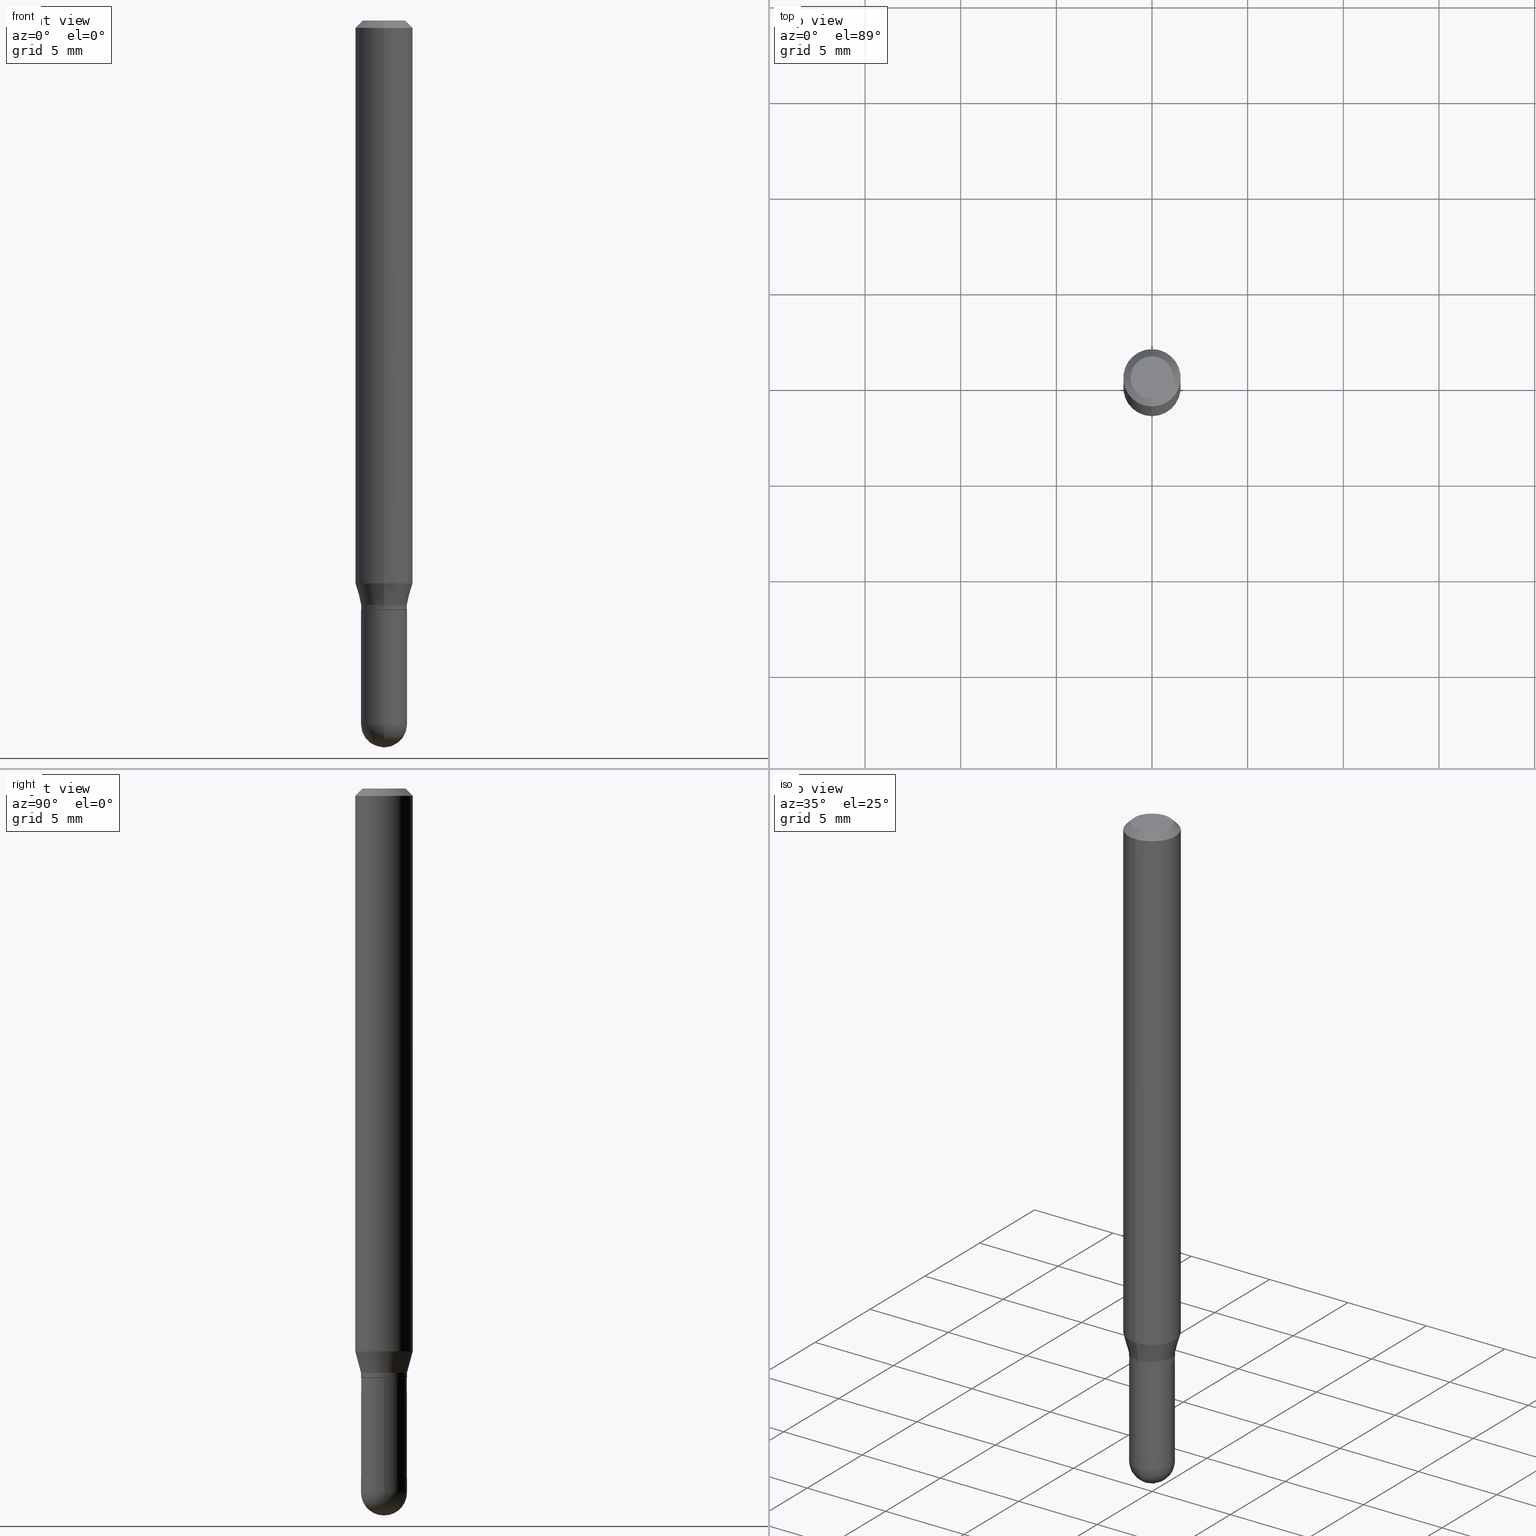
[diagram: canonical four-view strip — front | top / right | iso, engineering-drawing reading convention]
A machine part, canonical four-view strip (front | top / right | iso — engineering-drawing reading convention). The complete STEP part file that produces these views, byte-faithful:
ISO-10303-21;
HEADER;
FILE_DESCRIPTION (( 'STEP AP203' ),
    '1' );
FILE_NAME ('01993.STEP',
    '2024-03-07T19:52:55',
    ( '' ),
    ( '' ),
    'SwSTEP 2.0',
    'SolidWorks 2023',
    '' );
FILE_SCHEMA (( 'CONFIG_CONTROL_DESIGN' ));
ENDSEC;

DATA;
#1 = DIRECTION ( 'NONE',  ( -2.445468806185136597E-29, 3.491481338843145583E-15, 1.000000000000000000 ) ) ;
#2 = PLANE ( 'NONE',  #130 ) ;
#3 = CC_DESIGN_PERSON_AND_ORGANIZATION_ASSIGNMENT ( #34, #420, ( #196 ) ) ;
#4 = EDGE_LOOP ( 'NONE', ( #108, #353 ) ) ;
#5 = ORIENTED_EDGE ( 'NONE', *, *, #501, .F. ) ;
#6 = LINE ( 'NONE', #241, #417 ) ;
#7 = CIRCLE ( 'NONE', #445, 0.04404999999999999888 ) ;
#8 = ORIENTED_EDGE ( 'NONE', *, *, #473, .T. ) ;
#9 = DATE_AND_TIME ( #334, #469 ) ;
#10 = LINE ( 'NONE', #432, #486 ) ;
#11 = DIRECTION ( 'NONE',  ( 1.839019923739601499E-15, 0.2588190451025251249, 0.9659258262890670910 ) ) ;
#12 = ADVANCED_FACE ( 'NONE', ( #201 ), #2, .F. ) ;
#13 = CARTESIAN_POINT ( 'NONE',  ( -3.264535051818032208E-16, -0.04675000000000423261, -1.212599999999999900 ) ) ;
#14 = CARTESIAN_POINT ( 'NONE',  ( 3.357314426466819515E-16, 0.04724999999999483086, -1.448850000000000415 ) ) ;
#15 = CARTESIAN_POINT ( 'NONE',  ( 4.123439461173743285E-16, 0.05904999999999994975, -0.01500000000000023016 ) ) ;
#16 = DIRECTION ( 'NONE',  ( -2.445408174341908367E-29, 3.491568167093598573E-15, 1.000000000000000000 ) ) ;
#17 = AXIS2_PLACEMENT_3D ( 'NONE', #322, #480, #55 ) ;
#18 = FACE_OUTER_BOUND ( 'NONE', #4, .T. ) ;
#19 = SPHERICAL_SURFACE ( 'NONE', #243, 0.04724999999999979911 ) ;
#20 = EDGE_CURVE ( 'NONE', #63, #118, #312, .T. ) ;
#21 = CARTESIAN_POINT ( 'NONE',  ( -3.299449865206399170E-16, -0.04725000000000495470, -1.448849999999999749 ) ) ;
#22 = DATE_AND_TIME ( #189, #395 ) ;
#23 = DIRECTION ( 'NONE',  ( 1.000000000000000000, -6.982962677686256455E-15, 0.000000000000000000 ) ) ;
#24 = ORIENTED_EDGE ( 'NONE', *, *, #510, .T. ) ;
#25 = PRODUCT_DEFINITION_SHAPE ( 'NONE', 'NONE',  #159 ) ;
#26 = DIRECTION ( 'NONE',  ( -6.982962677686266711E-15, -1.000000000000000000, 2.921762560068730989E-15 ) ) ;
#27 = ORIENTED_EDGE ( 'NONE', *, *, #277, .F. ) ;
#28 = AXIS2_PLACEMENT_3D ( 'NONE', #51, #441, #374 ) ;
#29 = COORDINATED_UNIVERSAL_TIME_OFFSET ( 5, 0, .BEHIND. ) ;
#30 = APPROVAL_PERSON_ORGANIZATION ( #354, #68, #255 ) ;
#31 = DIRECTION ( 'NONE',  ( -2.445468806185136597E-29, 3.491481338843145583E-15, 1.000000000000000000 ) ) ;
#32 = APPROVAL_ROLE ( '' ) ;
#33 = DIRECTION ( 'NONE',  ( 1.000000000000000000, -6.982962677686267499E-15, 0.000000000000000000 ) ) ;
#34 = PERSON_AND_ORGANIZATION ( #282, #61 ) ;
#35 = EDGE_LOOP ( 'NONE', ( #119, #27, #43, #161 ) ) ;
#36 = ORIENTED_EDGE ( 'NONE', *, *, #310, .F. ) ;
#37 = ADVANCED_FACE ( 'NONE', ( #18 ), #447, .F. ) ;
#38 = APPROVAL_STATUS ( 'not_yet_approved' ) ;
#39 = DIRECTION ( 'NONE',  ( 2.438088387897960049E-29, -3.491481338843145188E-15, -1.000000000000000000 ) ) ;
#40 = EDGE_CURVE ( 'NONE', #165, #397, #299, .T. ) ;
#41 = AXIS2_PLACEMENT_3D ( 'NONE', #331, #443, #101 ) ;
#42 = CC_DESIGN_APPROVAL ( #68, ( #196 ) ) ;
#43 = ORIENTED_EDGE ( 'NONE', *, *, #57, .T. ) ;
#44 = EDGE_LOOP ( 'NONE', ( #442, #127, #373, #148 ) ) ;
#45 = VERTEX_POINT ( 'NONE', #66 ) ;
#46 = DIRECTION ( 'NONE',  ( -2.445468806185136877E-29, 3.491481338843145188E-15, 1.000000000000000000 ) ) ;
#47 = VECTOR ( 'NONE', #461, 39.37007874015748143 ) ;
#48 = PRODUCT_RELATED_PRODUCT_CATEGORY ( 'detail', '', ( #342 ) ) ;
#49 = FACE_OUTER_BOUND ( 'NONE', #409, .T. ) ;
#50 = EDGE_LOOP ( 'NONE', ( #246, #398, #65, #479 ) ) ;
#51 = CARTESIAN_POINT ( 'NONE',  ( 3.539076819124962473E-29, -5.064419193908863088E-15, -1.448849999999999971 ) ) ;
#52 = EDGE_CURVE ( 'NONE', #118, #301, #177, .T. ) ;
#53 = CARTESIAN_POINT ( 'NONE',  ( 2.965301952206998270E-29, -4.233875559417696891E-15, -1.212599999999999900 ) ) ;
#54 = COORDINATED_UNIVERSAL_TIME_OFFSET ( 5, 0, .BEHIND. ) ;
#55 = DIRECTION ( 'NONE',  ( -6.982962677686265922E-15, -1.000000000000000000, 3.505890868245046092E-15 ) ) ;
#56 = DIRECTION ( 'NONE',  ( -2.445468806185136597E-29, 3.491481338843145583E-15, 1.000000000000000000 ) ) ;
#57 = EDGE_CURVE ( 'NONE', #422, #388, #175, .T. ) ;
#58 = FACE_OUTER_BOUND ( 'NONE', #325, .T. ) ;
#59 = CARTESIAN_POINT ( 'NONE',  ( -3.299449865206764511E-16, -0.04725000000000005584, 1.649765958951727483E-16 ) ) ;
#60 = AXIS2_PLACEMENT_3D ( 'NONE', #134, #56, #494 ) ;
#61 = ORGANIZATION ( 'UNSPECIFIED', 'UNSPECIFIED', '' ) ;
#62 = CARTESIAN_POINT ( 'NONE',  ( -4.051124067684085231E-16, -0.05905000000000005383, -0.01499999999999981730 ) ) ;
#63 = VERTEX_POINT ( 'NONE', #403 ) ;
#64 = CARTESIAN_POINT ( 'NONE',  ( 2.965301952206998270E-29, -4.233875559417696891E-15, -1.212599999999999900 ) ) ;
#65 = ORIENTED_EDGE ( 'NONE', *, *, #274, .T. ) ;
#66 = CARTESIAN_POINT ( 'NONE',  ( 3.357314426466771690E-16, 0.04724999999999579536, -1.212099999999999955 ) ) ;
#67 = CARTESIAN_POINT ( 'NONE',  ( 3.668112261512868349E-31, -5.237352250640406068E-17, -0.01500000000000002373 ) ) ;
#68 = APPROVAL ( #504, 'UNSPECIFIED' ) ;
#69 = CIRCLE ( 'NONE', #458, 0.04724999999999998646 ) ;
#70 = CARTESIAN_POINT ( 'NONE',  ( 3.543117479841335070E-29, -5.058632737782891656E-15, -1.448849999999999971 ) ) ;
#71 = UNCERTAINTY_MEASURE_WITH_UNIT (LENGTH_MEASURE( 1.000000000000000082E-05 ), #179, 'distance_accuracy_value', 'NONE');
#72 = EDGE_CURVE ( 'NONE', #301, #45, #210, .T. ) ;
#73 = CARTESIAN_POINT ( 'NONE',  ( 0.000000000000000000, 0.000000000000000000, 0.000000000000000000 ) ) ;
#74 = ORIENTED_EDGE ( 'NONE', *, *, #205, .T. ) ;
#75 = CIRCLE ( 'NONE', #41, 0.05904999999999999832 ) ;
#76 = FACE_OUTER_BOUND ( 'NONE', #284, .T. ) ;
#77 = DIRECTION ( 'NONE',  ( 2.445408174341908367E-29, -3.491568167093598573E-15, -1.000000000000000000 ) ) ;
#78 = CARTESIAN_POINT ( 'NONE',  ( -3.299449865206470168E-16, -0.04725000000000425388, -1.202599999999999669 ) ) ;
#79 = ORIENTED_EDGE ( 'NONE', *, *, #20, .F. ) ;
#80 = DIRECTION ( 'NONE',  ( 0.000000000000000000, 0.000000000000000000, 1.000000000000000000 ) ) ;
#81 = AXIS2_PLACEMENT_3D ( 'NONE', #94, #328, #337 ) ;
#82 = CIRCLE ( 'NONE', #507, 0.04724999999999998646 ) ;
#83 = ORIENTED_EDGE ( 'NONE', *, *, #20, .T. ) ;
#84 = PERSON_AND_ORGANIZATION ( #282, #61 ) ;
#85 = DIRECTION ( 'NONE',  ( -6.982962677686265922E-15, -1.000000000000000000, 3.491568167093598178E-15 ) ) ;
#86 = ORIENTED_EDGE ( 'NONE', *, *, #57, .F. ) ;
#87 = EDGE_CURVE ( 'NONE', #474, #104, #456, .T. ) ;
#88 = DIRECTION ( 'NONE',  ( -6.982962677686265922E-15, -1.000000000000000000, 5.781688875479946610E-15 ) ) ;
#89 = EDGE_LOOP ( 'NONE', ( #212, #453, #225, #86 ) ) ;
#90 = CIRCLE ( 'NONE', #505, 0.04724999999999999339 ) ;
#91 = DIRECTION ( 'NONE',  ( -6.982962677686265922E-15, -1.000000000000000000, 2.890844437739957528E-15 ) ) ;
#92 = DIRECTION ( 'NONE',  ( -6.982962677686265922E-15, -1.000000000000000000, 2.890844437739957528E-15 ) ) ;
#93 = APPROVAL ( #263, 'UNSPECIFIED' ) ;
#94 = CARTESIAN_POINT ( 'NONE',  ( 3.539076819124962473E-29, -5.064419193908863088E-15, -1.448849999999999971 ) ) ;
#95 = FACE_OUTER_BOUND ( 'NONE', #207, .T. ) ;
#96 = LINE ( 'NONE', #59, #278 ) ;
#97 = DIRECTION ( 'NONE',  ( 4.937700262164548042E-15, 0.7071067811865451302, -0.7071067811865499042 ) ) ;
#98 = DIRECTION ( 'NONE',  ( -2.445408174341908367E-29, 3.491568167093598573E-15, 1.000000000000000000 ) ) ;
#99 = EDGE_LOOP ( 'NONE', ( #500, #163, #427, #370 ) ) ;
#100 = CIRCLE ( 'NONE', #60, 0.04724999999999998646 ) ;
#101 = DIRECTION ( 'NONE',  ( -6.982962677686265922E-15, -1.000000000000000000, 4.626330217890369336E-15 ) ) ;
#102 = CONICAL_SURFACE ( 'NONE', #164, 0.04674999999999999295, 0.7853981633974739252 ) ;
#103 = PERSON_AND_ORGANIZATION_ROLE ( 'design_supplier' ) ;
#104 = VERTEX_POINT ( 'NONE', #21 ) ;
#105 = CARTESIAN_POINT ( 'NONE',  ( 0.04724999999999998646, -3.299449865206760074E-16, 2.303993526563579130E-30 ) ) ;
#106 = PERSON_AND_ORGANIZATION ( #282, #61 ) ;
#107 = CC_DESIGN_DATE_AND_TIME_ASSIGNMENT ( #448, #222, ( #159 ) ) ;
#108 = ORIENTED_EDGE ( 'NONE', *, *, #277, .T. ) ;
#109 = VECTOR ( 'NONE', #11, 39.37007874015748854 ) ;
#110 = CIRCLE ( 'NONE', #186, 0.04674999999999999295 ) ;
#111 = ADVANCED_FACE ( 'NONE', ( #183 ), #153, .T. ) ;
#112 = VERTEX_POINT ( 'NONE', #497 ) ;
#113 = APPLICATION_PROTOCOL_DEFINITION ( 'international standard', 'config_control_design', 1994, #167 ) ;
#114 = DIRECTION ( 'NONE',  ( -2.445408174341908367E-29, 3.491568167093598573E-15, 1.000000000000000000 ) ) ;
#115 = EDGE_CURVE ( 'NONE', #477, #248, #279, .T. ) ;
#116 = FACE_OUTER_BOUND ( 'NONE', #89, .T. ) ;
#117 = ADVANCED_FACE ( 'NONE', ( #306 ), #262, .T. ) ;
#118 = VERTEX_POINT ( 'NONE', #13 ) ;
#119 = ORIENTED_EDGE ( 'NONE', *, *, #411, .F. ) ;
#120 = AXIS2_PLACEMENT_3D ( 'NONE', #402, #98, #288 ) ;
#121 = LOCAL_TIME ( 14, 52, 55.00000000000000000, #271 ) ;
#122 = CARTESIAN_POINT ( 'NONE',  ( 0.000000000000000000, 0.000000000000000000, 0.000000000000000000 ) ) ;
#123 = CC_DESIGN_PERSON_AND_ORGANIZATION_ASSIGNMENT ( #253, #378, ( #159 ) ) ;
#124 = ORIENTED_EDGE ( 'NONE', *, *, #510, .F. ) ;
#125 = DIRECTION ( 'NONE',  ( -6.982962677686265922E-15, -1.000000000000000000, 3.491568167093598178E-15 ) ) ;
#126 = MANIFOLD_SOLID_BREP ( 'Body-Move/Copy2[2]', #466 ) ;
#127 = ORIENTED_EDGE ( 'NONE', *, *, #115, .T. ) ;
#128 = CARTESIAN_POINT ( 'NONE',  ( 2.940847870463578782E-29, -4.198959877746760740E-15, -1.202599999999999891 ) ) ;
#129 = DIRECTION ( 'NONE',  ( -2.445468806185136597E-29, 3.491481338843145583E-15, 1.000000000000000000 ) ) ;
#130 = AXIS2_PLACEMENT_3D ( 'NONE', #472, #244, #259 ) ;
#131 = EDGE_CURVE ( 'NONE', #245, #104, #187, .T. ) ;
#132 = CONICAL_SURFACE ( 'NONE', #268, 0.05904999999999999832, 0.7853981633974483900 ) ;
#133 = LOCAL_TIME ( 14, 52, 55.00000000000000000, #29 ) ;
#134 = CARTESIAN_POINT ( 'NONE',  ( 3.543117479841335070E-29, -5.058632737782891656E-15, -1.448849999999999971 ) ) ;
#135 = DIRECTION ( 'NONE',  ( 1.000000000000000000, -6.982962677686265922E-15, 4.883557194083112901E-29 ) ) ;
#136 = CARTESIAN_POINT ( 'NONE',  ( 0.000000000000000000, 0.000000000000000000, 0.000000000000000000 ) ) ;
#137 = CARTESIAN_POINT ( 'NONE',  ( 3.075995059520799729E-16, 0.04404999999999999888, -1.657327868089498836E-16 ) ) ;
#138 = CYLINDRICAL_SURFACE ( 'NONE', #467, 0.05904999999999999832 ) ;
#139 = DIRECTION ( 'NONE',  ( -6.982962677686265922E-15, -1.000000000000000000, 2.890844437739957528E-15 ) ) ;
#140 = CARTESIAN_POINT ( 'NONE',  ( 0.04724999999999998646, -4.976146491152720682E-15, -1.448849999999999971 ) ) ;
#141 = SHAPE_DEFINITION_REPRESENTATION ( #25, #482 ) ;
#142 = FACE_OUTER_BOUND ( 'NONE', #35, .T. ) ;
#143 = AXIS2_PLACEMENT_3D ( 'NONE', #327, #492, #139 ) ;
#144 = CLOSED_SHELL ( 'NONE', ( #493, #429, #269, #360, #385 ) ) ;
#145 = DIRECTION ( 'NONE',  ( -2.445408174341908367E-29, 3.491568167093598573E-15, 1.000000000000000000 ) ) ;
#146 = CALENDAR_DATE ( 2024, 7, 3 ) ;
#147 = EDGE_CURVE ( 'NONE', #314, #245, #100, .T. ) ;
#148 = ORIENTED_EDGE ( 'NONE', *, *, #236, .F. ) ;
#149 = DIRECTION ( 'NONE',  ( -2.445408174341908367E-29, 3.491568167093598573E-15, 1.000000000000000000 ) ) ;
#150 = ORIENTED_EDGE ( 'NONE', *, *, #358, .F. ) ;
#151 = CARTESIAN_POINT ( 'NONE',  ( 4.195754854663390985E-16, 0.05904999999999999832, -2.061771002668769780E-16 ) ) ;
#152 = ORIENTED_EDGE ( 'NONE', *, *, #350, .T. ) ;
#153 = CONICAL_SURFACE ( 'NONE', #499, 0.04674999999999999295, 0.7853981633974739252 ) ;
#154 = CIRCLE ( 'NONE', #28, 0.04724999999999979911 ) ;
#155 = DATE_AND_TIME ( #233, #133 ) ;
#156 = ORIENTED_EDGE ( 'NONE', *, *, #512, .T. ) ;
#157 = MECHANICAL_CONTEXT ( 'NONE', #451, 'mechanical' ) ;
#158 = CONICAL_SURFACE ( 'NONE', #143, 0.04725000000000005584, 0.2617993877991504625 ) ;
#159 = PRODUCT_DEFINITION ( 'UNKNOWN', '', #174, #323 ) ;
#160 = ORIENTED_EDGE ( 'NONE', *, *, #40, .F. ) ;
#161 = ORIENTED_EDGE ( 'NONE', *, *, #368, .T. ) ;
#162 = CC_DESIGN_DATE_AND_TIME_ASSIGNMENT ( #22, #260, ( #196 ) ) ;
#163 = ORIENTED_EDGE ( 'NONE', *, *, #454, .T. ) ;
#164 = AXIS2_PLACEMENT_3D ( 'NONE', #302, #171, #481 ) ;
#165 = VERTEX_POINT ( 'NONE', #140 ) ;
#166 = DIRECTION ( 'NONE',  ( -4.851104656540964275E-15, -0.7071067811865500152, -0.7071067811865450192 ) ) ;
#167 = APPLICATION_CONTEXT ( 'configuration controlled 3d designs of mechanical parts and assemblies' ) ;
#168 = FACE_OUTER_BOUND ( 'NONE', #266, .T. ) ;
#169 = DIRECTION ( 'NONE',  ( 6.982962677686265922E-15, 1.000000000000000000, -3.491568167093598573E-15 ) ) ;
#170 = DIRECTION ( 'NONE',  ( -6.982962677686265922E-15, -1.000000000000000000, 2.890844437739957528E-15 ) ) ;
#171 = DIRECTION ( 'NONE',  ( -2.445408174341908367E-29, 3.491568167093598573E-15, 1.000000000000000000 ) ) ;
#172 = CARTESIAN_POINT ( 'NONE',  ( 3.543117479841335070E-29, -5.058632737782891656E-15, -1.448849999999999971 ) ) ;
#173 = VECTOR ( 'NONE', #247, 39.37007874015748854 ) ;
#174 = PRODUCT_DEFINITION_FORMATION_WITH_SPECIFIED_SOURCE ( 'ANY', '', #342, .NOT_KNOWN. ) ;
#175 = LINE ( 'NONE', #15, #333 ) ;
#176 = CARTESIAN_POINT ( 'NONE',  ( 3.539076819124962473E-29, -5.064419193908863088E-15, -1.448849999999999971 ) ) ;
#177 = LINE ( 'NONE', #221, #267 ) ;
#178 = COORDINATED_UNIVERSAL_TIME_OFFSET ( 5, 0, .BEHIND. ) ;
#179 =( CONVERSION_BASED_UNIT ( 'INCH', #188 ) LENGTH_UNIT ( ) NAMED_UNIT ( #450 ) );
#180 = ORIENTED_EDGE ( 'NONE', *, *, #512, .F. ) ;
#181 = DIRECTION ( 'NONE',  ( -2.445408174341908367E-29, 3.491568167093598573E-15, 1.000000000000000000 ) ) ;
#182 = CC_DESIGN_PERSON_AND_ORGANIZATION_ASSIGNMENT ( #265, #415, ( #174 ) ) ;
#183 = FACE_OUTER_BOUND ( 'NONE', #508, .T. ) ;
#184 = ORIENTED_EDGE ( 'NONE', *, *, #190, .F. ) ;
#185 = AXIS2_PLACEMENT_3D ( 'NONE', #213, #16, #170 ) ;
#186 = AXIS2_PLACEMENT_3D ( 'NONE', #64, #149, #227 ) ;
#187 = CIRCLE ( 'NONE', #317, 0.04724999999999998646 ) ;
#188 = LENGTH_MEASURE_WITH_UNIT ( LENGTH_MEASURE( 0.02539999999999999897 ), #352 );
#189 = CALENDAR_DATE ( 2024, 7, 3 ) ;
#190 = EDGE_CURVE ( 'NONE', #63, #45, #303, .T. ) ;
#191 = CARTESIAN_POINT ( 'NONE',  ( 3.357314426466476853E-16, 0.04725000000000005584, -1.649765958951727483E-16 ) ) ;
#192 = VERTEX_POINT ( 'NONE', #339 ) ;
#193 = COORDINATED_UNIVERSAL_TIME_OFFSET ( 5, 0, .BEHIND. ) ;
#194 = ORIENTED_EDGE ( 'NONE', *, *, #72, .F. ) ;
#195 = CIRCLE ( 'NONE', #200, 0.05904999999999999832 ) ;
#196 = SECURITY_CLASSIFICATION ( '', '', #349 ) ;
#197 = APPROVAL_ROLE ( '' ) ;
#198 = ADVANCED_FACE ( 'NONE', ( #49 ), #295, .T. ) ;
#199 = DIRECTION ( 'NONE',  ( -2.445408174341908367E-29, 3.491568167093598573E-15, 1.000000000000000000 ) ) ;
#200 = AXIS2_PLACEMENT_3D ( 'NONE', #216, #254, #251 ) ;
#201 = FACE_OUTER_BOUND ( 'NONE', #396, .T. ) ;
#202 = EDGE_CURVE ( 'NONE', #301, #248, #96, .T. ) ;
#203 = CARTESIAN_POINT ( 'NONE',  ( 3.299449865207056883E-16, 0.04724999999999576067, -1.212600000000000122 ) ) ;
#204 = ORIENTED_EDGE ( 'NONE', *, *, #446, .T. ) ;
#205 = EDGE_CURVE ( 'NONE', #477, #308, #372, .T. ) ;
#206 = EDGE_LOOP ( 'NONE', ( #150, #496, #24, #344, #287 ) ) ;
#207 = EDGE_LOOP ( 'NONE', ( #421, #74, #503, #462 ) ) ;
#208 = AXIS2_PLACEMENT_3D ( 'NONE', #128, #294, #92 ) ;
#209 = CARTESIAN_POINT ( 'NONE',  ( 0.000000000000000000, 0.000000000000000000, 0.000000000000000000 ) ) ;
#210 = CIRCLE ( 'NONE', #393, 0.04725000000000005584 ) ;
#211 = DIRECTION ( 'NONE',  ( -2.445408174341908367E-29, 3.491568167093598573E-15, 1.000000000000000000 ) ) ;
#212 = ORIENTED_EDGE ( 'NONE', *, *, #239, .F. ) ;
#213 = CARTESIAN_POINT ( 'NONE',  ( 2.964079248119826819E-29, -4.232129775334150873E-15, -1.212099999999999955 ) ) ;
#214 = ADVANCED_FACE ( 'NONE', ( #381 ), #158, .T. ) ;
#215 = DIRECTION ( 'NONE',  ( -6.982962677686265922E-15, -1.000000000000000000, 2.890844437739957528E-15 ) ) ;
#216 = CARTESIAN_POINT ( 'NONE',  ( 2.833156497351298695E-29, -4.045197502134097515E-15, -1.158561800470687464 ) ) ;
#217 = DIRECTION ( 'NONE',  ( -6.982962677686265922E-15, -1.000000000000000000, 3.505890868245046092E-15 ) ) ;
#218 = VECTOR ( 'NONE', #455, 39.37007874015748143 ) ;
#219 = CIRCLE ( 'NONE', #17, 0.05904999999999999832 ) ;
#220 = CARTESIAN_POINT ( 'NONE',  ( 3.357314426466771197E-16, 0.04724999999999585781, -1.202600000000000113 ) ) ;
#221 = CARTESIAN_POINT ( 'NONE',  ( -3.264535051818032208E-16, -0.04675000000000423261, -1.212599999999999900 ) ) ;
#222 = DATE_TIME_ROLE ( 'creation_date' ) ;
#223 = CARTESIAN_POINT ( 'NONE',  ( 3.599717260347271507E-16, 0.04404999999999999888, -1.776619958574267450E-16 ) ) ;
#224 = ADVANCED_FACE ( 'NONE', ( #168 ), #102, .T. ) ;
#225 = ORIENTED_EDGE ( 'NONE', *, *, #425, .T. ) ;
#226 = DIRECTION ( 'NONE',  ( -6.982962677686265922E-15, -1.000000000000000000, 3.491568167093598967E-15 ) ) ;
#227 = DIRECTION ( 'NONE',  ( -6.982962677686266711E-15, -1.000000000000000000, 2.921762560068730989E-15 ) ) ;
#228 = DIRECTION ( 'NONE',  ( -2.445408174341908367E-29, 3.491568167093598573E-15, 1.000000000000000000 ) ) ;
#229 = AXIS2_PLACEMENT_3D ( 'NONE', #280, #77, #391 ) ;
#230 = CARTESIAN_POINT ( 'NONE',  ( 3.321787289678764184E-16, 0.04674999999999576022, -1.212600000000000122 ) ) ;
#231 = PERSON_AND_ORGANIZATION ( #282, #61 ) ;
#232 = DIRECTION ( 'NONE',  ( -2.445408174341908367E-29, 3.491568167093598573E-15, 1.000000000000000000 ) ) ;
#233 = CALENDAR_DATE ( 2024, 7, 3 ) ;
#234 = ORIENTED_EDGE ( 'NONE', *, *, #87, .F. ) ;
#235 = ORIENTED_EDGE ( 'NONE', *, *, #446, .F. ) ;
#236 = EDGE_CURVE ( 'NONE', #308, #192, #75, .T. ) ;
#237 = CIRCLE ( 'NONE', #208, 0.04725000000000005584 ) ;
#238 = PERSON_AND_ORGANIZATION ( #282, #61 ) ;
#239 = EDGE_CURVE ( 'NONE', #459, #422, #7, .T. ) ;
#240 = DIRECTION ( 'NONE',  ( 1.000000000000000000, 0.000000000000000000, 0.000000000000000000 ) ) ;
#241 = CARTESIAN_POINT ( 'NONE',  ( -4.123439461173739834E-16, -0.05904999999999999832, 2.061771002668769780E-16 ) ) ;
#242 = FACE_OUTER_BOUND ( 'NONE', #50, .T. ) ;
#243 = AXIS2_PLACEMENT_3D ( 'NONE', #176, #338, #382 ) ;
#244 = DIRECTION ( 'NONE',  ( -2.445408174341908087E-29, 3.491568167093598573E-15, 1.000000000000000000 ) ) ;
#245 = VERTEX_POINT ( 'NONE', #475 ) ;
#246 = ORIENTED_EDGE ( 'NONE', *, *, #473, .F. ) ;
#247 = DIRECTION ( 'NONE',  ( -1.807323732225331323E-15, -0.2588190451025183525, 0.9659258262890689783 ) ) ;
#248 = VERTEX_POINT ( 'NONE', #78 ) ;
#249 = CYLINDRICAL_SURFACE ( 'NONE', #335, 0.04724999999999998646 ) ;
#250 = CC_DESIGN_PERSON_AND_ORGANIZATION_ASSIGNMENT ( #84, #463, ( #342 ) ) ;
#251 = DIRECTION ( 'NONE',  ( -6.982962677686265922E-15, -1.000000000000000000, 4.626330217890369336E-15 ) ) ;
#252 = CARTESIAN_POINT ( 'NONE',  ( 2.940847870463578782E-29, -4.198959877746760740E-15, -1.202599999999999891 ) ) ;
#253 = PERSON_AND_ORGANIZATION ( #282, #61 ) ;
#254 = DIRECTION ( 'NONE',  ( -2.445408174341908367E-29, 3.491568167093598573E-15, 1.000000000000000000 ) ) ;
#255 = APPROVAL_ROLE ( '' ) ;
#256 = ADVANCED_FACE ( 'NONE', ( #242 ), #392, .T. ) ;
#257 = CARTESIAN_POINT ( 'NONE',  ( -3.299449865206470168E-16, -0.04725000000000425388, -1.202599999999999669 ) ) ;
#258 = CIRCLE ( 'NONE', #293, 0.04724999999999999339 ) ;
#259 = DIRECTION ( 'NONE',  ( -6.982962677686265922E-15, -1.000000000000000000, 3.491568167093598573E-15 ) ) ;
#260 = DATE_TIME_ROLE ( 'classification_date' ) ;
#261 = DIRECTION ( 'NONE',  ( 1.000000000000000000, -6.982962677686267499E-15, 0.000000000000000000 ) ) ;
#262 = CYLINDRICAL_SURFACE ( 'NONE', #470, 0.04725000000000005584 ) ;
#263 = APPROVAL_STATUS ( 'not_yet_approved' ) ;
#264 = ORIENTED_EDGE ( 'NONE', *, *, #501, .T. ) ;
#265 = PERSON_AND_ORGANIZATION ( #282, #61 ) ;
#266 = EDGE_LOOP ( 'NONE', ( #184, #83, #433, #311 ) ) ;
#267 = VECTOR ( 'NONE', #405, 39.37007874015748143 ) ;
#268 = AXIS2_PLACEMENT_3D ( 'NONE', #67, #304, #275 ) ;
#269 = ADVANCED_FACE ( 'NONE', ( #76 ), #367, .F. ) ;
#270 = APPROVAL_PERSON_ORGANIZATION ( #238, #419, #197 ) ;
#271 = COORDINATED_UNIVERSAL_TIME_OFFSET ( 5, 0, .BEHIND. ) ;
#272 = DIRECTION ( 'NONE',  ( -2.445468806185136597E-29, 3.491481338843145583E-15, 1.000000000000000000 ) ) ;
#273 = EDGE_LOOP ( 'NONE', ( #234, #286, #5, #124 ) ) ;
#274 = EDGE_CURVE ( 'NONE', #192, #112, #6, .T. ) ;
#275 = DIRECTION ( 'NONE',  ( 6.982962677686265922E-15, 1.000000000000000000, -3.505890868245046092E-15 ) ) ;
#276 = ORIENTED_EDGE ( 'NONE', *, *, #52, .F. ) ;
#277 = EDGE_CURVE ( 'NONE', #422, #459, #357, .T. ) ;
#278 = VECTOR ( 'NONE', #181, 39.37007874015748143 ) ;
#279 = CIRCLE ( 'NONE', #348, 0.04725000000000005584 ) ;
#280 = CARTESIAN_POINT ( 'NONE',  ( 3.668112261512868349E-31, -5.237352250640406068E-17, -0.01500000000000002373 ) ) ;
#281 = ADVANCED_FACE ( 'NONE', ( #116 ), #346, .T. ) ;
#282 = PERSON ( 'UNSPECIFIED', 'UNSPECIFIED', 'UNSPECIFIED', ('UNSPECIFIED'), ('UNSPECIFIED'), ('UNSPECIFIED') ) ;
#283 = EDGE_CURVE ( 'NONE', #389, #397, #258, .T. ) ;
#284 = EDGE_LOOP ( 'NONE', ( #204, #401 ) ) ;
#285 = CC_DESIGN_APPROVAL ( #93, ( #174 ) ) ;
#286 = ORIENTED_EDGE ( 'NONE', *, *, #310, .T. ) ;
#287 = ORIENTED_EDGE ( 'NONE', *, *, #283, .F. ) ;
#288 = DIRECTION ( 'NONE',  ( -6.982962677686265922E-15, -1.000000000000000000, 2.890844437739957528E-15 ) ) ;
#289 = ORIENTED_EDGE ( 'NONE', *, *, #202, .T. ) ;
#290 = CARTESIAN_POINT ( 'NONE',  ( -0.04724999999999999339, -4.310470061985398025E-15, -1.212599999999999900 ) ) ;
#291 = CARTESIAN_POINT ( 'NONE',  ( 2.965301952206998270E-29, -4.233875559417696891E-15, -1.212599999999999900 ) ) ;
#292 = VECTOR ( 'NONE', #440, 39.37007874015748143 ) ;
#293 = AXIS2_PLACEMENT_3D ( 'NONE', #361, #1, #300 ) ;
#294 = DIRECTION ( 'NONE',  ( -2.445408174341908367E-29, 3.491568167093598573E-15, 1.000000000000000000 ) ) ;
#295 = CYLINDRICAL_SURFACE ( 'NONE', #428, 0.04725000000000005584 ) ;
#296 = CARTESIAN_POINT ( 'NONE',  ( 2.964079248119826819E-29, -4.232129775334150873E-15, -1.212099999999999955 ) ) ;
#297 = LINE ( 'NONE', #257, #173 ) ;
#298 = ADVANCED_FACE ( 'NONE', ( #95 ), #423, .T. ) ;
#299 = LINE ( 'NONE', #105, #292 ) ;
#300 = DIRECTION ( 'NONE',  ( 1.000000000000000000, -6.982962677686256455E-15, 0.000000000000000000 ) ) ;
#301 = VERTEX_POINT ( 'NONE', #336 ) ;
#302 = CARTESIAN_POINT ( 'NONE',  ( 2.965301952206998270E-29, -4.233875559417696891E-15, -1.212599999999999900 ) ) ;
#303 = LINE ( 'NONE', #230, #218 ) ;
#304 = DIRECTION ( 'NONE',  ( 2.445408174341908367E-29, -3.491568167093598573E-15, -1.000000000000000000 ) ) ;
#305 = ORIENTED_EDGE ( 'NONE', *, *, #147, .T. ) ;
#306 = FACE_OUTER_BOUND ( 'NONE', #99, .T. ) ;
#307 = CARTESIAN_POINT ( 'NONE',  ( 3.652604889859023213E-29, -5.232284915232186807E-15, -1.496099999999999985 ) ) ;
#308 = VERTEX_POINT ( 'NONE', #478 ) ;
#309 = LINE ( 'NONE', #191, #47 ) ;
#310 = EDGE_CURVE ( 'NONE', #474, #314, #154, .T. ) ;
#311 = ORIENTED_EDGE ( 'NONE', *, *, #315, .F. ) ;
#312 = CIRCLE ( 'NONE', #485, 0.04674999999999999295 ) ;
#313 = VECTOR ( 'NONE', #232, 39.37007874015748143 ) ;
#314 = VERTEX_POINT ( 'NONE', #14 ) ;
#315 = EDGE_CURVE ( 'NONE', #45, #301, #400, .T. ) ;
#316 = DIRECTION ( 'NONE',  ( -1.000000000000000000, 6.982962677686265922E-15, -4.876176775795935793E-29 ) ) ;
#317 = AXIS2_PLACEMENT_3D ( 'NONE', #172, #332, #488 ) ;
#318 = ORIENTED_EDGE ( 'NONE', *, *, #147, .F. ) ;
#319 = ORIENTED_EDGE ( 'NONE', *, *, #131, .F. ) ;
#320 = VECTOR ( 'NONE', #166, 39.37007874015748143 ) ;
#321 = ORIENTED_EDGE ( 'NONE', *, *, #454, .F. ) ;
#322 = CARTESIAN_POINT ( 'NONE',  ( 3.668112261512868349E-31, -5.237352250640406068E-17, -0.01500000000000002373 ) ) ;
#323 = DESIGN_CONTEXT ( 'detailed design', #167, 'design' ) ;
#324 = CC_DESIGN_PERSON_AND_ORGANIZATION_ASSIGNMENT ( #231, #103, ( #174 ) ) ;
#325 = EDGE_LOOP ( 'NONE', ( #36, #347, #319, #318 ) ) ;
#326 = FACE_OUTER_BOUND ( 'NONE', #418, .T. ) ;
#327 = CARTESIAN_POINT ( 'NONE',  ( 2.940847870463578782E-29, -4.198959877746760740E-15, -1.202599999999999891 ) ) ;
#328 = DIRECTION ( 'NONE',  ( -1.000000000000000000, 6.982962677686265922E-15, -4.883557194083112340E-29 ) ) ;
#329 = ADVANCED_FACE ( 'NONE', ( #326 ), #138, .T. ) ;
#330 = FACE_OUTER_BOUND ( 'NONE', #206, .T. ) ;
#331 = CARTESIAN_POINT ( 'NONE',  ( 2.833156497351298695E-29, -4.045197502134097515E-15, -1.158561800470687464 ) ) ;
#332 = DIRECTION ( 'NONE',  ( -2.445468806185136597E-29, 3.491481338843145583E-15, 1.000000000000000000 ) ) ;
#333 = VECTOR ( 'NONE', #97, 39.37007874015748143 ) ;
#334 = CALENDAR_DATE ( 2024, 7, 3 ) ;
#335 = AXIS2_PLACEMENT_3D ( 'NONE', #209, #129, #439 ) ;
#336 = CARTESIAN_POINT ( 'NONE',  ( -3.299449865206470168E-16, -0.04725000000000431633, -1.212099999999999733 ) ) ;
#337 = DIRECTION ( 'NONE',  ( -6.982962677686265922E-15, -1.000000000000000000, 0.000000000000000000 ) ) ;
#338 = DIRECTION ( 'NONE',  ( 1.000000000000000000, -6.982962677686265922E-15, 4.883557194083112901E-29 ) ) ;
#339 = CARTESIAN_POINT ( 'NONE',  ( -4.123439461173456337E-16, -0.05905000000000405758, -1.158561800470687464 ) ) ;
#340 = DIRECTION ( 'NONE',  ( -6.982962677686266711E-15, -1.000000000000000000, 2.921762560068730989E-15 ) ) ;
#341 = DATE_AND_TIME ( #407, #509 ) ;
#342 = PRODUCT ( '01993', '01993', '', ( #157 ) ) ;
#343 = CARTESIAN_POINT ( 'NONE',  ( -3.536586717851222218E-16, -0.04404999999999999888, 1.299451596635192992E-16 ) ) ;
#344 = ORIENTED_EDGE ( 'NONE', *, *, #40, .T. ) ;
#345 = DIRECTION ( 'NONE',  ( -2.445408174341908367E-29, 3.491568167093598573E-15, 1.000000000000000000 ) ) ;
#346 = CONICAL_SURFACE ( 'NONE', #229, 0.05904999999999999832, 0.7853981633974483900 ) ;
#347 = ORIENTED_EDGE ( 'NONE', *, *, #87, .T. ) ;
#348 = AXIS2_PLACEMENT_3D ( 'NONE', #252, #145, #215 ) ;
#349 = SECURITY_CLASSIFICATION_LEVEL ( 'unclassified' ) ;
#350 = EDGE_CURVE ( 'NONE', #192, #308, #195, .T. ) ;
#351 = CARTESIAN_POINT ( 'NONE',  ( 3.776534640565222593E-16, 0.04724999999999585781, -1.202600000000000113 ) ) ;
#352 =( LENGTH_UNIT ( ) NAMED_UNIT ( * ) SI_UNIT ( $, .METRE. ) );
#353 = ORIENTED_EDGE ( 'NONE', *, *, #239, .T. ) ;
#354 = PERSON_AND_ORGANIZATION ( #282, #61 ) ;
#355 = FACE_OUTER_BOUND ( 'NONE', #363, .T. ) ;
#356 = ORIENTED_EDGE ( 'NONE', *, *, #358, .T. ) ;
#357 = CIRCLE ( 'NONE', #369, 0.04404999999999999888 ) ;
#358 = EDGE_CURVE ( 'NONE', #245, #389, #10, .T. ) ;
#359 = CC_DESIGN_APPROVAL ( #419, ( #159 ) ) ;
#360 = ADVANCED_FACE ( 'NONE', ( #58 ), #406, .T. ) ;
#361 = CARTESIAN_POINT ( 'NONE',  ( 2.965375474380096235E-29, -4.233770271481197693E-15, -1.212599999999999900 ) ) ;
#362 = AXIS2_PLACEMENT_3D ( 'NONE', #203, #39, #316 ) ;
#363 = EDGE_LOOP ( 'NONE', ( #305, #356, #235, #160, #264 ) ) ;
#364 = ORIENTED_EDGE ( 'NONE', *, *, #274, .F. ) ;
#365 = DIRECTION ( 'NONE',  ( -6.982962677686265133E-15, -1.000000000000000000, 3.491568167093598967E-15 ) ) ;
#366 = ORIENTED_EDGE ( 'NONE', *, *, #425, .F. ) ;
#367 = PLANE ( 'NONE',  #362 ) ;
#368 = EDGE_CURVE ( 'NONE', #388, #112, #219, .T. ) ;
#369 = AXIS2_PLACEMENT_3D ( 'NONE', #511, #114, #468 ) ;
#370 = ORIENTED_EDGE ( 'NONE', *, *, #202, .F. ) ;
#371 = CARTESIAN_POINT ( 'NONE',  ( 4.195754854663675961E-16, 0.05904999999999994281, -0.01500000000000023016 ) ) ;
#372 = LINE ( 'NONE', #220, #109 ) ;
#373 = ORIENTED_EDGE ( 'NONE', *, *, #376, .T. ) ;
#374 = DIRECTION ( 'NONE',  ( 7.105427357601001070E-15, 1.000000000000000000, 0.000000000000000000 ) ) ;
#375 = DIRECTION ( 'NONE',  ( -6.982962677686265922E-15, -1.000000000000000000, 3.491568167093598967E-15 ) ) ;
#376 = EDGE_CURVE ( 'NONE', #248, #192, #297, .T. ) ;
#377 = DIRECTION ( 'NONE',  ( -2.445408174341908367E-29, 3.491568167093598573E-15, 1.000000000000000000 ) ) ;
#378 = PERSON_AND_ORGANIZATION_ROLE ( 'creator' ) ;
#379 = AXIS2_PLACEMENT_3D ( 'NONE', #413, #80, #240 ) ;
#380 = DIRECTION ( 'NONE',  ( -2.445468806185136597E-29, 3.491481338843145583E-15, 1.000000000000000000 ) ) ;
#381 = FACE_OUTER_BOUND ( 'NONE', #44, .T. ) ;
#382 = DIRECTION ( 'NONE',  ( -6.982962677686265922E-15, -1.000000000000000000, 5.781688875479946610E-15 ) ) ;
#383 = ORIENTED_EDGE ( 'NONE', *, *, #190, .T. ) ;
#384 = DIRECTION ( 'NONE',  ( 1.000000000000000000, -6.982962677686266711E-15, 4.876176775795935793E-29 ) ) ;
#385 = ADVANCED_FACE ( 'NONE', ( #330 ), #249, .T. ) ;
#386 = CARTESIAN_POINT ( 'NONE',  ( 3.543117479841335070E-29, -5.058632737782891656E-15, -1.448849999999999971 ) ) ;
#387 = APPROVAL_DATE_TIME ( #155, #93 ) ;
#388 = VERTEX_POINT ( 'NONE', #371 ) ;
#389 = VERTEX_POINT ( 'NONE', #290 ) ;
#390 = CIRCLE ( 'NONE', #498, 0.05904999999999999832 ) ;
#391 = DIRECTION ( 'NONE',  ( 6.982962677686265922E-15, 1.000000000000000000, -3.505890868245046092E-15 ) ) ;
#392 = CYLINDRICAL_SURFACE ( 'NONE', #476, 0.05904999999999999832 ) ;
#393 = AXIS2_PLACEMENT_3D ( 'NONE', #296, #444, #91 ) ;
#394 = AXIS2_PLACEMENT_3D ( 'NONE', #73, #506, #384 ) ;
#395 = LOCAL_TIME ( 14, 52, 55.00000000000000000, #193 ) ;
#396 = EDGE_LOOP ( 'NONE', ( #180, #79 ) ) ;
#397 = VERTEX_POINT ( 'NONE', #408 ) ;
#398 = ORIENTED_EDGE ( 'NONE', *, *, #236, .T. ) ;
#399 = DIRECTION ( 'NONE',  ( -2.445408174341908367E-29, 3.491568167093598573E-15, 1.000000000000000000 ) ) ;
#400 = CIRCLE ( 'NONE', #185, 0.04725000000000005584 ) ;
#401 = ORIENTED_EDGE ( 'NONE', *, *, #283, .T. ) ;
#402 = CARTESIAN_POINT ( 'NONE',  ( 2.940847870463578782E-29, -4.198959877746760740E-15, -1.202599999999999891 ) ) ;
#403 = CARTESIAN_POINT ( 'NONE',  ( 3.339550858072768183E-16, 0.04674999999999576022, -1.212600000000000122 ) ) ;
#404 = CARTESIAN_POINT ( 'NONE',  ( 3.668112261512868349E-31, -5.237352250640406068E-17, -0.01500000000000002373 ) ) ;
#405 = DIRECTION ( 'NONE',  ( -4.937700262164674260E-15, -0.7071067811865632269, 0.7071067811865319186 ) ) ;
#406 = SPHERICAL_SURFACE ( 'NONE', #435, 0.04724999999999979911 ) ;
#407 = CALENDAR_DATE ( 2024, 7, 3 ) ;
#408 = CARTESIAN_POINT ( 'NONE',  ( 0.04724999999999999339, -4.563715258001873701E-15, -1.212599999999999900 ) ) ;
#409 = EDGE_LOOP ( 'NONE', ( #321, #430, #289, #431 ) ) ;
#410 = APPLICATION_PROTOCOL_DEFINITION ( 'international standard', 'config_control_design', 1994, #451 ) ;
#411 = EDGE_CURVE ( 'NONE', #459, #112, #483, .T. ) ;
#412 = CARTESIAN_POINT ( 'NONE',  ( 0.000000000000000000, 0.000000000000000000, 0.000000000000000000 ) ) ;
#413 = CARTESIAN_POINT ( 'NONE',  ( 0.000000000000000000, 0.000000000000000000, 0.000000000000000000 ) ) ;
#414 = EDGE_CURVE ( 'NONE', #248, #477, #237, .T. ) ;
#415 = PERSON_AND_ORGANIZATION_ROLE ( 'creator' ) ;
#416 = AXIS2_PLACEMENT_3D ( 'NONE', #137, #438, #169 ) ;
#417 = VECTOR ( 'NONE', #465, 39.37007874015748143 ) ;
#418 = EDGE_LOOP ( 'NONE', ( #152, #8, #366, #364 ) ) ;
#419 = APPROVAL ( #38, 'UNSPECIFIED' ) ;
#420 = PERSON_AND_ORGANIZATION_ROLE ( 'classification_officer' ) ;
#421 = ORIENTED_EDGE ( 'NONE', *, *, #414, .T. ) ;
#422 = VERTEX_POINT ( 'NONE', #223 ) ;
#423 = CONICAL_SURFACE ( 'NONE', #120, 0.04725000000000005584, 0.2617993877991504625 ) ;
#424 = APPROVAL_PERSON_ORGANIZATION ( #106, #93, #32 ) ;
#425 = EDGE_CURVE ( 'NONE', #112, #388, #390, .T. ) ;
#426 = DIRECTION ( 'NONE',  ( -2.445408174341908367E-29, 3.491568167093598573E-15, 1.000000000000000000 ) ) ;
#427 = ORIENTED_EDGE ( 'NONE', *, *, #414, .F. ) ;
#428 = AXIS2_PLACEMENT_3D ( 'NONE', #136, #211, #226 ) ;
#429 = ADVANCED_FACE ( 'NONE', ( #434 ), #19, .T. ) ;
#430 = ORIENTED_EDGE ( 'NONE', *, *, #315, .T. ) ;
#431 = ORIENTED_EDGE ( 'NONE', *, *, #115, .F. ) ;
#432 = CARTESIAN_POINT ( 'NONE',  ( -0.04724999999999998646, 3.357314426466472416E-16, -2.324196830145442465E-30 ) ) ;
#433 = ORIENTED_EDGE ( 'NONE', *, *, #52, .T. ) ;
#434 = FACE_OUTER_BOUND ( 'NONE', #273, .T. ) ;
#435 = AXIS2_PLACEMENT_3D ( 'NONE', #437, #135, #88 ) ;
#436 = DIRECTION ( 'NONE',  ( -2.445408174341908367E-29, 3.491568167093598573E-15, 1.000000000000000000 ) ) ;
#437 = CARTESIAN_POINT ( 'NONE',  ( 3.539076819124962473E-29, -5.064419193908863088E-15, -1.448849999999999971 ) ) ;
#438 = DIRECTION ( 'NONE',  ( 2.445408174341908087E-29, -3.491568167093598573E-15, -1.000000000000000000 ) ) ;
#439 = DIRECTION ( 'NONE',  ( 1.000000000000000000, -6.982962677686266711E-15, 4.876176775795935793E-29 ) ) ;
#440 = DIRECTION ( 'NONE',  ( -2.445468806185136877E-29, 3.491481338843145188E-15, 1.000000000000000000 ) ) ;
#441 = DIRECTION ( 'NONE',  ( 1.000000000000000000, -7.105427357601001070E-15, 4.926315508542082329E-29 ) ) ;
#442 = ORIENTED_EDGE ( 'NONE', *, *, #205, .F. ) ;
#443 = DIRECTION ( 'NONE',  ( -2.445408174341908367E-29, 3.491568167093598573E-15, 1.000000000000000000 ) ) ;
#444 = DIRECTION ( 'NONE',  ( -2.445408174341908367E-29, 3.491568167093598573E-15, 1.000000000000000000 ) ) ;
#445 = AXIS2_PLACEMENT_3D ( 'NONE', #484, #426, #365 ) ;
#446 = EDGE_CURVE ( 'NONE', #397, #389, #90, .T. ) ;
#447 = PLANE ( 'NONE',  #416 ) ;
#448 = DATE_AND_TIME ( #146, #121 ) ;
#449 =( NAMED_UNIT ( * ) SI_UNIT ( $, .STERADIAN. ) SOLID_ANGLE_UNIT ( ) );
#450 = DIMENSIONAL_EXPONENTS ( 1.000000000000000000, 0.000000000000000000, 0.000000000000000000, 0.000000000000000000, 0.000000000000000000, 0.000000000000000000, 0.000000000000000000 ) ;
#451 = APPLICATION_CONTEXT ( 'configuration controlled 3d designs of mechanical parts and assemblies' ) ;
#452 =( NAMED_UNIT ( * ) PLANE_ANGLE_UNIT ( ) SI_UNIT ( $, .RADIAN. ) );
#453 = ORIENTED_EDGE ( 'NONE', *, *, #411, .T. ) ;
#454 = EDGE_CURVE ( 'NONE', #45, #477, #309, .T. ) ;
#455 = DIRECTION ( 'NONE',  ( 5.024295867788190974E-15, 0.7071067811865681119, 0.7071067811865270336 ) ) ;
#456 = CIRCLE ( 'NONE', #81, 0.04724999999999979911 ) ;
#457 = LINE ( 'NONE', #151, #313 ) ;
#458 = AXIS2_PLACEMENT_3D ( 'NONE', #70, #31, #261 ) ;
#459 = VERTEX_POINT ( 'NONE', #343 ) ;
#460 = CC_DESIGN_SECURITY_CLASSIFICATION ( #196, ( #174 ) ) ;
#461 = DIRECTION ( 'NONE',  ( -2.445408174341908367E-29, 3.491568167093598573E-15, 1.000000000000000000 ) ) ;
#462 = ORIENTED_EDGE ( 'NONE', *, *, #376, .F. ) ;
#463 = PERSON_AND_ORGANIZATION_ROLE ( 'design_owner' ) ;
#464 = MANIFOLD_SOLID_BREP ( 'Body-Move/Copy2[1]', #144 ) ;
#465 = DIRECTION ( 'NONE',  ( -2.445408174341908367E-29, 3.491568167093598573E-15, 1.000000000000000000 ) ) ;
#466 = CLOSED_SHELL ( 'NONE', ( #117, #111, #281, #329, #298, #214, #256, #471, #37, #12, #224, #198 ) ) ;
#467 = AXIS2_PLACEMENT_3D ( 'NONE', #490, #399, #125 ) ;
#468 = DIRECTION ( 'NONE',  ( -6.982962677686265133E-15, -1.000000000000000000, 3.491568167093598967E-15 ) ) ;
#469 = LOCAL_TIME ( 14, 52, 55.00000000000000000, #54 ) ;
#470 = AXIS2_PLACEMENT_3D ( 'NONE', #412, #228, #375 ) ;
#471 = ADVANCED_FACE ( 'NONE', ( #142 ), #132, .T. ) ;
#472 = CARTESIAN_POINT ( 'NONE',  ( 2.965301952206998270E-29, -4.233875559417696891E-15, -1.212599999999999900 ) ) ;
#473 = EDGE_CURVE ( 'NONE', #308, #388, #457, .T. ) ;
#474 = VERTEX_POINT ( 'NONE', #307 ) ;
#475 = CARTESIAN_POINT ( 'NONE',  ( -0.04724999999999998646, -4.310470061985398025E-15, -1.448849999999999971 ) ) ;
#476 = AXIS2_PLACEMENT_3D ( 'NONE', #122, #199, #85 ) ;
#477 = VERTEX_POINT ( 'NONE', #351 ) ;
#478 = CARTESIAN_POINT ( 'NONE',  ( 4.195754854663673496E-16, 0.05904999999999594601, -1.158561800470687686 ) ) ;
#479 = ORIENTED_EDGE ( 'NONE', *, *, #368, .F. ) ;
#480 = DIRECTION ( 'NONE',  ( -2.445408174341908367E-29, 3.491568167093598573E-15, 1.000000000000000000 ) ) ;
#481 = DIRECTION ( 'NONE',  ( -6.982962677686266711E-15, -1.000000000000000000, 2.921762560068730989E-15 ) ) ;
#482 = ADVANCED_BREP_SHAPE_REPRESENTATION ( '01993', ( #464, #126, #379 ), #487 ) ;
#483 = LINE ( 'NONE', #62, #320 ) ;
#484 = CARTESIAN_POINT ( 'NONE',  ( 5.834357064115758471E-46, -8.330329314453348724E-32, -2.385841809695373215E-17 ) ) ;
#485 = AXIS2_PLACEMENT_3D ( 'NONE', #291, #436, #26 ) ;
#486 = VECTOR ( 'NONE', #46, 39.37007874015748143 ) ;
#487 =( GEOMETRIC_REPRESENTATION_CONTEXT ( 3 ) GLOBAL_UNCERTAINTY_ASSIGNED_CONTEXT ( ( #71 ) ) GLOBAL_UNIT_ASSIGNED_CONTEXT ( ( #179, #452, #449 ) ) REPRESENTATION_CONTEXT ( 'NONE', 'WORKASPACE' ) );
#488 = DIRECTION ( 'NONE',  ( 1.000000000000000000, -6.982962677686267499E-15, 0.000000000000000000 ) ) ;
#489 = APPROVAL_DATE_TIME ( #9, #419 ) ;
#490 = CARTESIAN_POINT ( 'NONE',  ( 0.000000000000000000, 0.000000000000000000, 0.000000000000000000 ) ) ;
#491 = CARTESIAN_POINT ( 'NONE',  ( 2.965375474380096235E-29, -4.233770271481197693E-15, -1.212599999999999900 ) ) ;
#492 = DIRECTION ( 'NONE',  ( -2.445408174341908367E-29, 3.491568167093598573E-15, 1.000000000000000000 ) ) ;
#493 = ADVANCED_FACE ( 'NONE', ( #355 ), #502, .T. ) ;
#494 = DIRECTION ( 'NONE',  ( 1.000000000000000000, -6.982962677686267499E-15, 0.000000000000000000 ) ) ;
#495 = APPROVAL_DATE_TIME ( #341, #68 ) ;
#496 = ORIENTED_EDGE ( 'NONE', *, *, #131, .T. ) ;
#497 = CARTESIAN_POINT ( 'NONE',  ( -4.123439461173736383E-16, -0.05905000000000005383, -0.01499999999999981730 ) ) ;
#498 = AXIS2_PLACEMENT_3D ( 'NONE', #404, #377, #217 ) ;
#499 = AXIS2_PLACEMENT_3D ( 'NONE', #53, #345, #340 ) ;
#500 = ORIENTED_EDGE ( 'NONE', *, *, #72, .T. ) ;
#501 = EDGE_CURVE ( 'NONE', #165, #314, #69, .T. ) ;
#502 = CYLINDRICAL_SURFACE ( 'NONE', #394, 0.04724999999999998646 ) ;
#503 = ORIENTED_EDGE ( 'NONE', *, *, #350, .F. ) ;
#504 = APPROVAL_STATUS ( 'not_yet_approved' ) ;
#505 = AXIS2_PLACEMENT_3D ( 'NONE', #491, #380, #23 ) ;
#506 = DIRECTION ( 'NONE',  ( -2.445468806185136597E-29, 3.491481338843145583E-15, 1.000000000000000000 ) ) ;
#507 = AXIS2_PLACEMENT_3D ( 'NONE', #386, #272, #33 ) ;
#508 = EDGE_LOOP ( 'NONE', ( #156, #383, #194, #276 ) ) ;
#509 = LOCAL_TIME ( 14, 52, 55.00000000000000000, #178 ) ;
#510 = EDGE_CURVE ( 'NONE', #104, #165, #82, .T. ) ;
#511 = CARTESIAN_POINT ( 'NONE',  ( 5.834357064115758471E-46, -8.330329314453348724E-32, -2.385841809695373215E-17 ) ) ;
#512 = EDGE_CURVE ( 'NONE', #118, #63, #110, .T. ) ;
ENDSEC;
END-ISO-10303-21;
